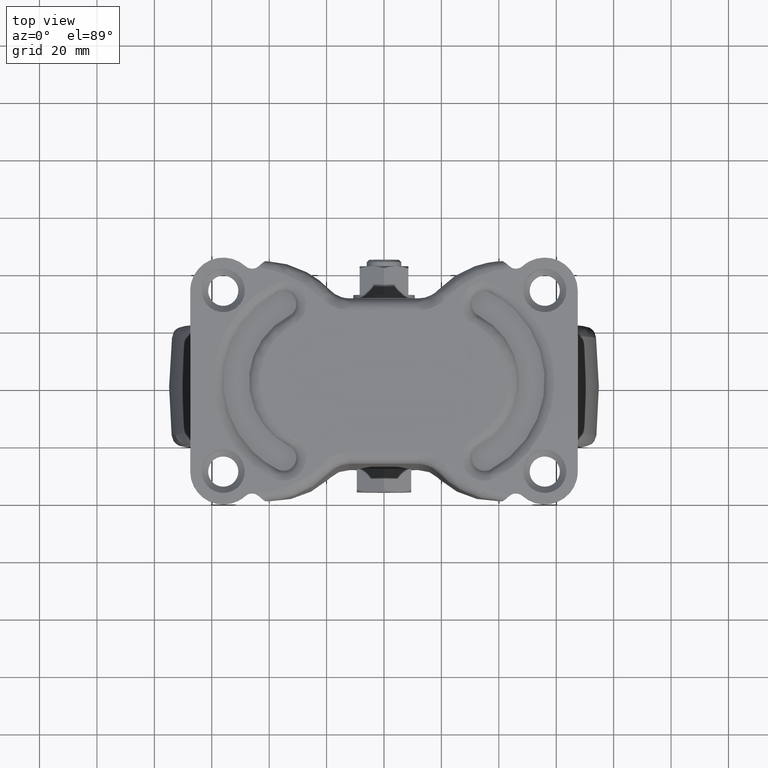
[diagram: clean part render]
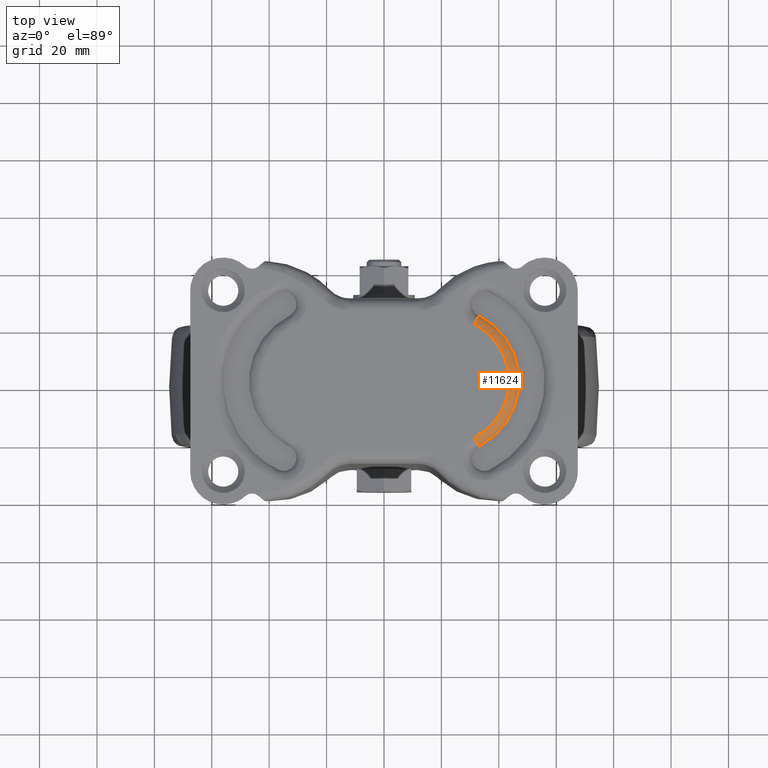
[diagram: same view with one face highlighted and labeled with its STEP entity id]
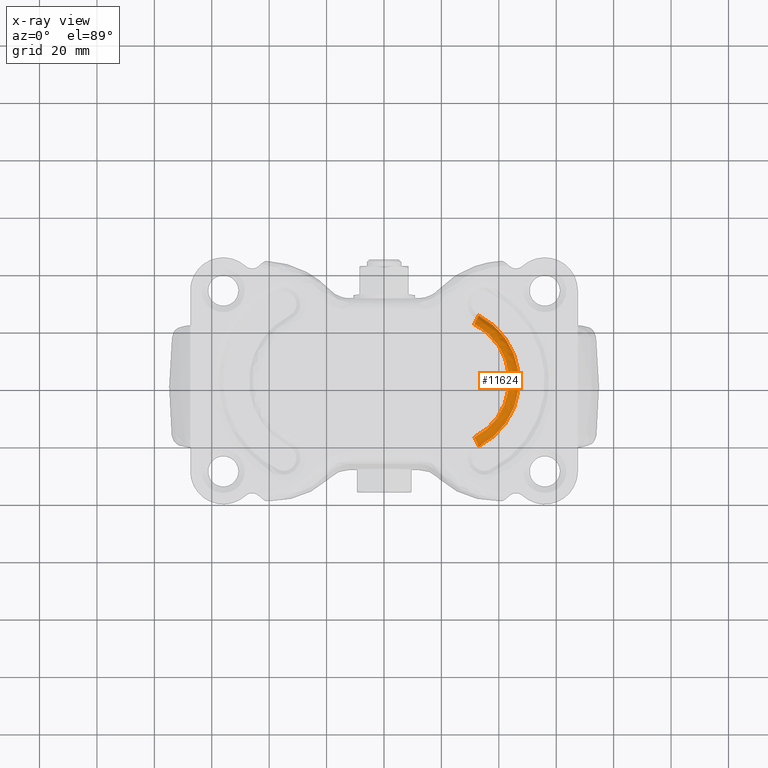
[diagram: x-ray of the same camera — body ghosted, the highlighted face saturated]
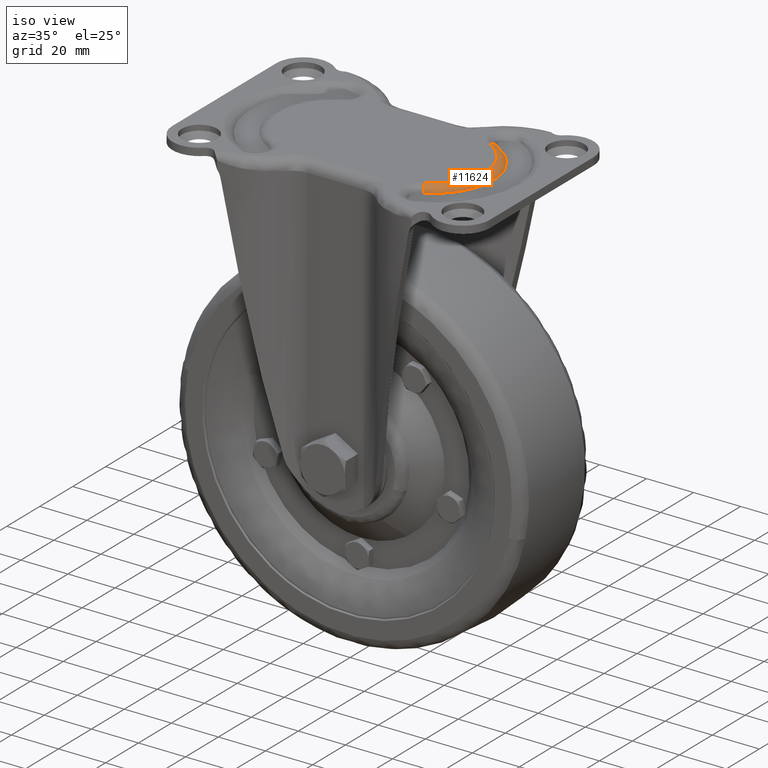
[diagram: same view with one face highlighted and labeled with its STEP entity id]
A machine part, top view. The second image highlights one B-rep face of the part: STEP entity #11624.
The next image is the same camera in x-ray: the body ghosted, the highlighted face saturated — about 0% of this face is hidden behind the body in this view.
A second angle (iso view) of the same face is appended — the face is thin or edge-on in the first view.
In plain terms, the highlighted face is a freeform B-spline surface patch.
Its self-contained STEP definition (entity closure, byte-faithful):
#11186=CARTESIAN_POINT('',(32.996311444329947,-22.761476735373900,-2.299999999999970));
#11187=VERTEX_POINT('',#11186);
#11232=CARTESIAN_POINT('',(32.996311223654203,22.761476846832299,-2.299999999999970));
#11233=VERTEX_POINT('',#11232);
#11252=CARTESIAN_POINT('',(32.996311444329947,-22.761476735373900,-2.299999999999970));
#11253=CARTESIAN_POINT('',(34.761972164607712,-21.870227774744318,-2.299999999999968));
#11254=CARTESIAN_POINT('',(37.160934524797852,-20.283684089829539,-2.299999999999971));
#11255=CARTESIAN_POINT('',(40.160544714363951,-17.477431315508760,-2.299999999999970));
#11256=CARTESIAN_POINT('',(42.274005576800647,-14.936203854317240,-2.299999999999969));
#11257=CARTESIAN_POINT('',(44.274792834685918,-11.684186745177810,-2.299999999999955));
#11258=CARTESIAN_POINT('',(45.765683603577358,-8.165067335665246,-2.300000000000023));
#11259=CARTESIAN_POINT('',(46.855325719418907,-3.819128211593591,-2.299999999999933));
#11260=CARTESIAN_POINT('',(47.140787651344219,0.592264765214411,-2.299999999999998));
#11261=CARTESIAN_POINT('',(46.574718807222162,5.260395541255649,-2.299999999999943));
#11262=CARTESIAN_POINT('',(45.464808330934183,8.997313954977104,-2.300000000000000));
#11263=CARTESIAN_POINT('',(43.591385198711848,12.982120451440091,-2.299999999999995));
#11264=CARTESIAN_POINT('',(41.067805649403070,16.611698636187700,-2.300000000000012));
#11265=CARTESIAN_POINT('',(37.353489156035941,20.177303183730171,-2.299999999999870));
#11266=CARTESIAN_POINT('',(34.565684487079992,21.969102330606219,-2.300000000000012));
#11267=CARTESIAN_POINT('',(32.996311223654203,22.761476846832299,-2.299999999999970));
#11268=B_SPLINE_CURVE_WITH_KNOTS('',3,(#11252,#11253,#11254,#11255,#11256,#11257,#11258,#11259,#11260,#11261,#11262,#11263,#11264,#11265,#11266,#11267),.UNSPECIFIED.,.F.,.U.,(4,1,1,1,1,1,1,1,1,1,1,1,1,4),(0.000000192215090,5.933396162064000,8.570514290505074,12.306428958425780,15.822583815791450,19.997982971804550,23.733869079648830,29.227795823884261,33.183416474262728,37.798349258581077,40.874955199077853,46.368945190706327,50.983869806054493,56.258014970684997),.UNSPECIFIED.);
#11269=EDGE_CURVE('',#11187,#11233,#11268,.T.);
#11472=CARTESIAN_POINT('',(31.452240329807651,-19.704379285813701,0.0));
#11473=VERTEX_POINT('',#11472);
#11474=CARTESIAN_POINT('',(31.452240329807651,-19.704379285813701,0.0));
#11475=CARTESIAN_POINT('',(32.572448772891534,-21.922273489078417,0.0));
#11476=CARTESIAN_POINT('',(32.996311420485981,-22.761476688165342,-2.300000021619165));
#11484=(BOUNDED_CURVE()B_SPLINE_CURVE(2,(#11474,#11475,#11476),.UNSPECIFIED.,.F.,.U.)CURVE()GEOMETRIC_REPRESENTATION_ITEM()QUASI_UNIFORM_CURVE()RATIONAL_B_SPLINE_CURVE((1.0,0.830174190316515,1.0))REPRESENTATION_ITEM(''));
#11485=EDGE_CURVE('',#11473,#11187,#11484,.T.);
#11535=CARTESIAN_POINT('',(31.452239941177400,19.704379482101899,0.0));
#11536=VERTEX_POINT('',#11535);
#11559=CARTESIAN_POINT('',(32.996311223654182,22.761476846832291,-2.299999999999976));
#11560=CARTESIAN_POINT('',(32.572448518660558,21.922273648670991,0.000000041452067));
#11561=CARTESIAN_POINT('',(31.452239941177410,19.704379482101888,-4.336809E-016));
#11569=(BOUNDED_CURVE()B_SPLINE_CURVE(2,(#11559,#11560,#11561),.UNSPECIFIED.,.F.,.U.)CURVE()GEOMETRIC_REPRESENTATION_ITEM()QUASI_UNIFORM_CURVE()RATIONAL_B_SPLINE_CURVE((1.0,0.830174187425763,1.0))REPRESENTATION_ITEM(''));
#11570=EDGE_CURVE('',#11233,#11536,#11569,.T.);
#11576=CARTESIAN_POINT('',(30.540674585418948,-23.920588531204650,-2.491087542490862));
#11577=CARTESIAN_POINT('',(47.072022849955374,-17.672642753326354,-2.491087542490861));
#11578=CARTESIAN_POINT('',(47.072022849955388,1.565783E-015,-2.491087542490861));
#11579=CARTESIAN_POINT('',(47.072022849955367,17.672642753326354,-2.491087542490861));
#11580=CARTESIAN_POINT('',(30.540674585418934,23.920588531204650,-2.491087542490862));
#11581=CARTESIAN_POINT('',(30.218060950445114,-23.066989837451001,0.148519331675275));
#11582=CARTESIAN_POINT('',(46.159493240874674,-17.042000043606432,0.148519331675275));
#11583=CARTESIAN_POINT('',(46.159493240874667,1.509909E-015,0.148519331675275));
#11584=CARTESIAN_POINT('',(46.159493240874653,17.042000043606432,0.148519331675275));
#11585=CARTESIAN_POINT('',(30.218060950445096,23.066989837451001,0.148519331675275));
#11586=CARTESIAN_POINT('',(29.232174297527614,-20.458446775754968,-0.005640781423864));
#11587=CARTESIAN_POINT('',(43.370861067725372,-15.114796221849108,-0.005640781423864));
#11588=CARTESIAN_POINT('',(43.370861067725372,1.339160E-015,-0.005640781423864));
#11589=CARTESIAN_POINT('',(43.370861067725372,15.114796221849108,-0.005640781423864));
#11590=CARTESIAN_POINT('',(29.232174297527603,20.458446775754979,-0.005640781423864));
#11598=(BOUNDED_SURFACE()B_SPLINE_SURFACE(2,2,((#11576,#11581,#11586),(#11577,#11582,#11587),(#11578,#11583,#11588),(#11579,#11584,#11589),(#11580,#11585,#11590)),.UNSPECIFIED.,.F.,.F.,.U.)B_SPLINE_SURFACE_WITH_KNOTS((3,2,3),(3,3),(0.0,31.904250027791399,63.808500055582812),(0.0,4.958730943969860),.UNSPECIFIED.)GEOMETRIC_REPRESENTATION_ITEM()RATIONAL_B_SPLINE_SURFACE(((0.896911814201619,0.715686274542622,0.896465010146704),(0.749161279334297,0.597789477793435,0.748788078433058),(0.924614147064797,0.737791211827495,0.924153542863137),(0.749161279334297,0.597789477793435,0.748788078433058),(0.896911814201619,0.715686274542622,0.896465010146704)))REPRESENTATION_ITEM('')SURFACE());
#11599=ORIENTED_EDGE('',*,*,#11485,.T.);
#11600=ORIENTED_EDGE('',*,*,#11269,.T.);
#11601=ORIENTED_EDGE('',*,*,#11570,.T.);
#11602=CARTESIAN_POINT('',(31.452240329807651,-19.704379285813701,0.0));
#11603=CARTESIAN_POINT('',(32.527720115721742,-19.161260971390579,0.0));
#11604=CARTESIAN_POINT('',(34.643727229570239,-17.865100366988148,0.0));
#11605=CARTESIAN_POINT('',(37.233121033904602,-15.604908417942770,0.0));
#11606=CARTESIAN_POINT('',(39.408903818763449,-13.034016601090840,0.0));
#11607=CARTESIAN_POINT('',(40.895883780087317,-10.663113857547630,0.0));
#11608=CARTESIAN_POINT('',(42.127026855341512,-8.014969391970343,0.0));
#11609=CARTESIAN_POINT('',(43.170014508209853,-4.810393509714084,0.0));
#11610=CARTESIAN_POINT('',(43.645580200711791,-1.270442965091607,0.0));
#11611=CARTESIAN_POINT('',(43.520617581925180,2.348583861782183,0.0));
#11612=CARTESIAN_POINT('',(43.018836231545812,5.231007049934092,0.0));
#11613=CARTESIAN_POINT('',(41.971586262166383,8.497889924500697,0.0));
#11614=CARTESIAN_POINT('',(40.570908420273582,11.287191518170770,0.0));
#11615=CARTESIAN_POINT('',(38.588678680252940,14.086114997962930,0.0));
#11616=CARTESIAN_POINT('',(35.844673095532983,17.008228051584659,0.0));
#11617=CARTESIAN_POINT('',(33.207247581374858,18.818586250335819,0.0));
#11618=CARTESIAN_POINT('',(31.452239941177400,19.704379482101899,0.0));
#11619=B_SPLINE_CURVE_WITH_KNOTS('',3,(#11602,#11603,#11604,#11605,#11606,#11607,#11608,#11609,#11610,#11611,#11612,#11613,#11614,#11615,#11616,#11617,#11618),.UNSPECIFIED.,.F.,.U.,(4,1,1,1,1,1,1,1,1,1,1,1,1,1,4),(0.000000212216015,3.614520660440057,7.419401570614340,10.273071520310110,13.697449928425080,15.790135202499240,19.024281415935569,23.780346386645661,26.443621075102790,29.868004356617419,32.531397504525799,36.716740208068863,39.189910813678743,42.804511486612242,48.701992445575371),.UNSPECIFIED.);
#11620=EDGE_CURVE('',#11473,#11536,#11619,.T.);
#11621=ORIENTED_EDGE('',*,*,#11620,.F.);
#11622=EDGE_LOOP('',(#11599,#11600,#11601,#11621));
#11623=FACE_OUTER_BOUND('',#11622,.T.);
#11624=ADVANCED_FACE('',(#11623),#11598,.T.);